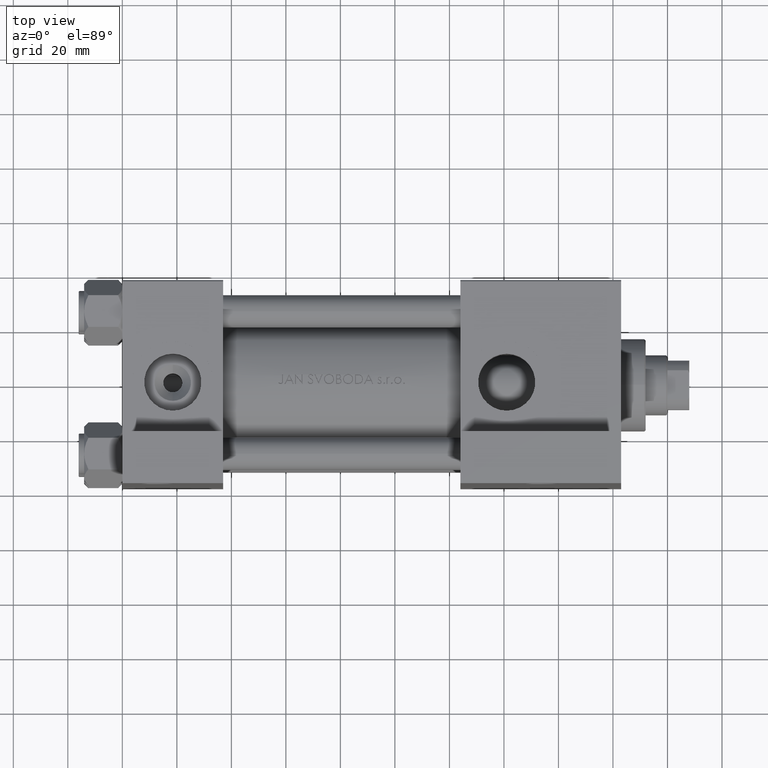
[diagram: clean part render]
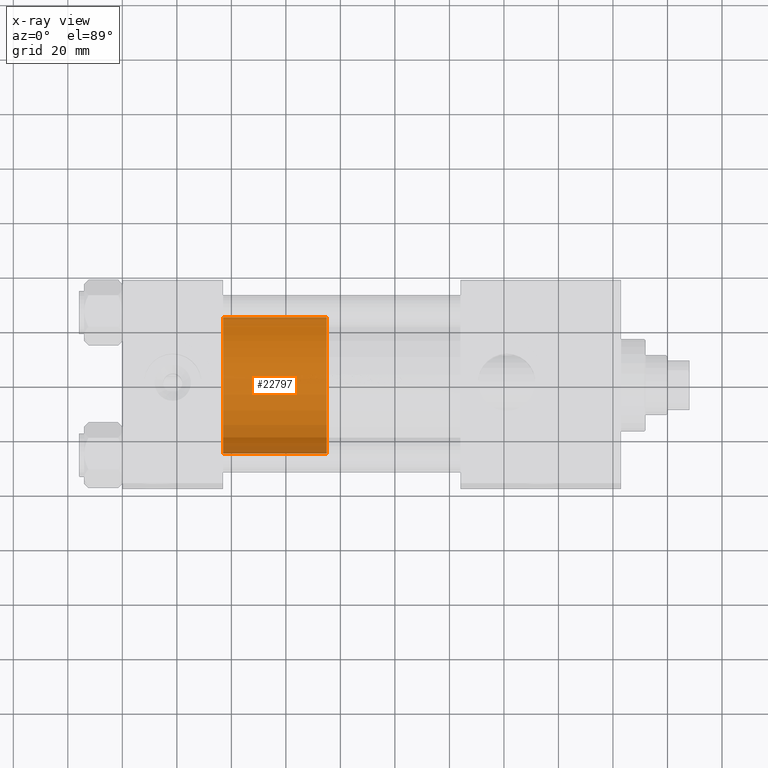
[diagram: x-ray — body ghosted, one internal face saturated and labeled with its STEP entity id]
A machine part, top view, then the same camera in x-ray: the body is ghosted and one INTERNAL B-rep face — a face not visible from any outside direction — is saturated and labeled: STEP entity #22797.
In plain terms, the highlighted cylindrical surface (partial cylindrical patch) has radius 25 mm, axis along (-1, 0, 0).
Its self-contained STEP definition (entity closure, byte-faithful):
#8 = DIRECTION ( 'NONE',  ( -0.000000000000000000, -0.000000000000000000, -1.000000000000000000 ) ) ;
#1927 = CIRCLE ( 'NONE', #8293, 25.00000000000000000 ) ;
#1960 = LINE ( 'NONE', #22057, #23145 ) ;
#2182 = DIRECTION ( 'NONE',  ( 1.000000000000000000, 0.000000000000000000, 0.000000000000000000 ) ) ;
#2914 = CARTESIAN_POINT ( 'NONE',  ( 0.000000000000000000, 0.000000000000000000, 38.00000000000000000 ) ) ;
#4513 = EDGE_CURVE ( 'NONE', #36963, #41063, #1927, .T. ) ;
#4557 = EDGE_CURVE ( 'NONE', #9056, #15942, #48851, .T. ) ;
#8293 = AXIS2_PLACEMENT_3D ( 'NONE', #36267, #40487, #2182 ) ;
#9056 = VERTEX_POINT ( 'NONE', #41003 ) ;
#10149 = DIRECTION ( 'NONE',  ( 0.000000000000000000, 0.000000000000000000, 1.000000000000000000 ) ) ;
#13104 = CARTESIAN_POINT ( 'NONE',  ( 0.000000000000000000, 0.000000000000000000, 38.00000000000000000 ) ) ;
#13590 = FACE_OUTER_BOUND ( 'NONE', #35875, .T. ) ;
#15202 = ORIENTED_EDGE ( 'NONE', *, *, #16943, .T. ) ;
#15466 = ORIENTED_EDGE ( 'NONE', *, *, #4557, .F. ) ;
#15942 = VERTEX_POINT ( 'NONE', #40526 ) ;
#16842 = CYLINDRICAL_SURFACE ( 'NONE', #30236, 25.00000000000000000 ) ;
#16943 = EDGE_CURVE ( 'NONE', #9056, #36963, #22680, .T. ) ;
#17169 = DIRECTION ( 'NONE',  ( -0.000000000000000000, -0.000000000000000000, -1.000000000000000000 ) ) ;
#17994 = ORIENTED_EDGE ( 'NONE', *, *, #41444, .F. ) ;
#22057 = CARTESIAN_POINT ( 'NONE',  ( -25.00000000000000000, 0.000000000000000000, 38.00000000000000000 ) ) ;
#22680 = LINE ( 'NONE', #37830, #43666 ) ;
#22797 = ADVANCED_FACE ( 'NONE', ( #13590 ), #16842, .T. ) ;
#23145 = VECTOR ( 'NONE', #17169, 1000.000000000000000 ) ;
#25043 = DIRECTION ( 'NONE',  ( -1.000000000000000000, 0.000000000000000000, 0.000000000000000000 ) ) ;
#28111 = ORIENTED_EDGE ( 'NONE', *, *, #4513, .T. ) ;
#28777 = DIRECTION ( 'NONE',  ( -0.000000000000000000, -0.000000000000000000, -1.000000000000000000 ) ) ;
#30236 = AXIS2_PLACEMENT_3D ( 'NONE', #13104, #28777, #25043 ) ;
#31097 = CARTESIAN_POINT ( 'NONE',  ( 25.00000000000000000, 3.061616997868383043E-15, 0.000000000000000000 ) ) ;
#32788 = DIRECTION ( 'NONE',  ( 1.000000000000000000, 0.000000000000000000, 0.000000000000000000 ) ) ;
#33717 = AXIS2_PLACEMENT_3D ( 'NONE', #2914, #10149, #32788 ) ;
#35875 = EDGE_LOOP ( 'NONE', ( #15466, #15202, #28111, #17994 ) ) ;
#36267 = CARTESIAN_POINT ( 'NONE',  ( 0.000000000000000000, 0.000000000000000000, 0.000000000000000000 ) ) ;
#36963 = VERTEX_POINT ( 'NONE', #31097 ) ;
#37830 = CARTESIAN_POINT ( 'NONE',  ( 25.00000000000000000, 3.061616997868383043E-15, 38.00000000000000000 ) ) ;
#40487 = DIRECTION ( 'NONE',  ( 0.000000000000000000, 0.000000000000000000, 1.000000000000000000 ) ) ;
#40526 = CARTESIAN_POINT ( 'NONE',  ( -25.00000000000000000, 0.000000000000000000, 38.00000000000000000 ) ) ;
#41003 = CARTESIAN_POINT ( 'NONE',  ( 25.00000000000000000, 3.061616997868383043E-15, 38.00000000000000000 ) ) ;
#41063 = VERTEX_POINT ( 'NONE', #47330 ) ;
#41444 = EDGE_CURVE ( 'NONE', #15942, #41063, #1960, .T. ) ;
#43666 = VECTOR ( 'NONE', #8, 1000.000000000000000 ) ;
#47330 = CARTESIAN_POINT ( 'NONE',  ( -25.00000000000000000, 0.000000000000000000, 0.000000000000000000 ) ) ;
#48851 = CIRCLE ( 'NONE', #33717, 25.00000000000000000 ) ;